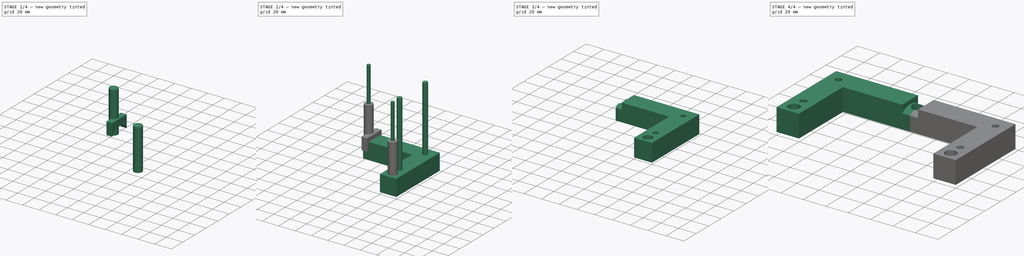
[diagram: build sequence overview — one tinted view per stage of 4, left to right]
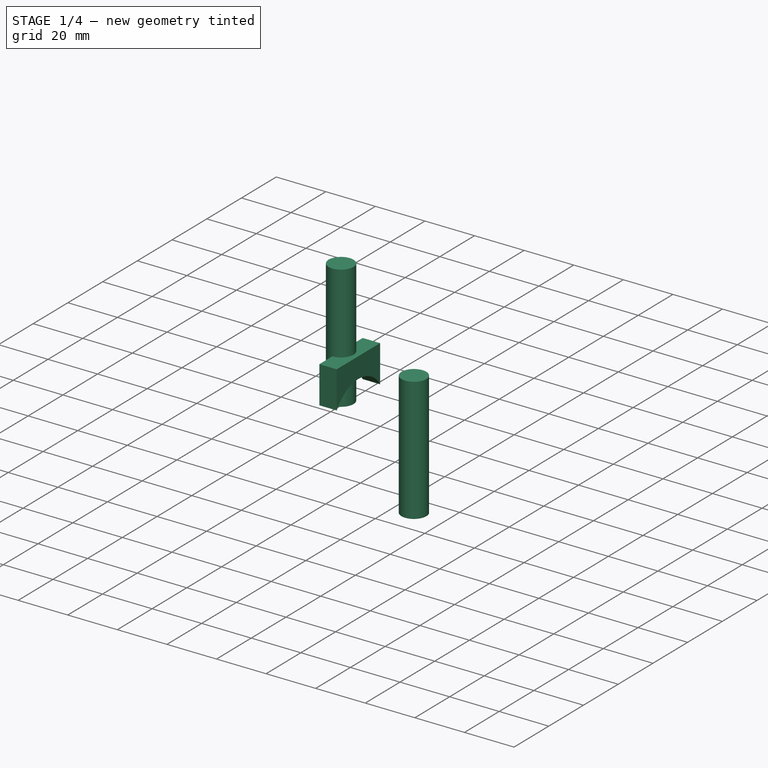
[diagram: stage 1 of 4 — iso view after this stage's code; geometry added in this stage tinted green]
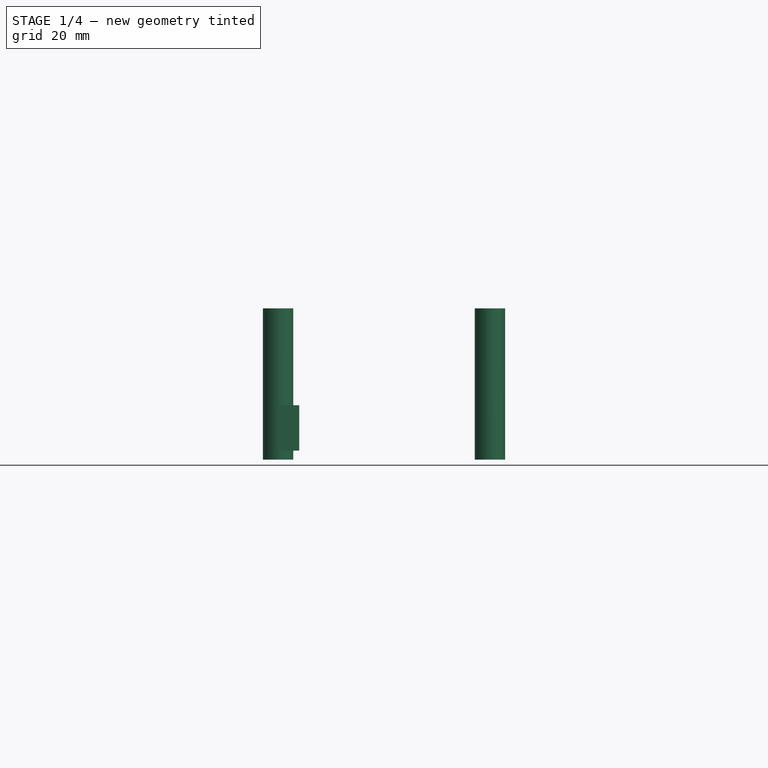
[diagram: stage 1 of 4 — front view after this stage's code; geometry added in this stage tinted green]
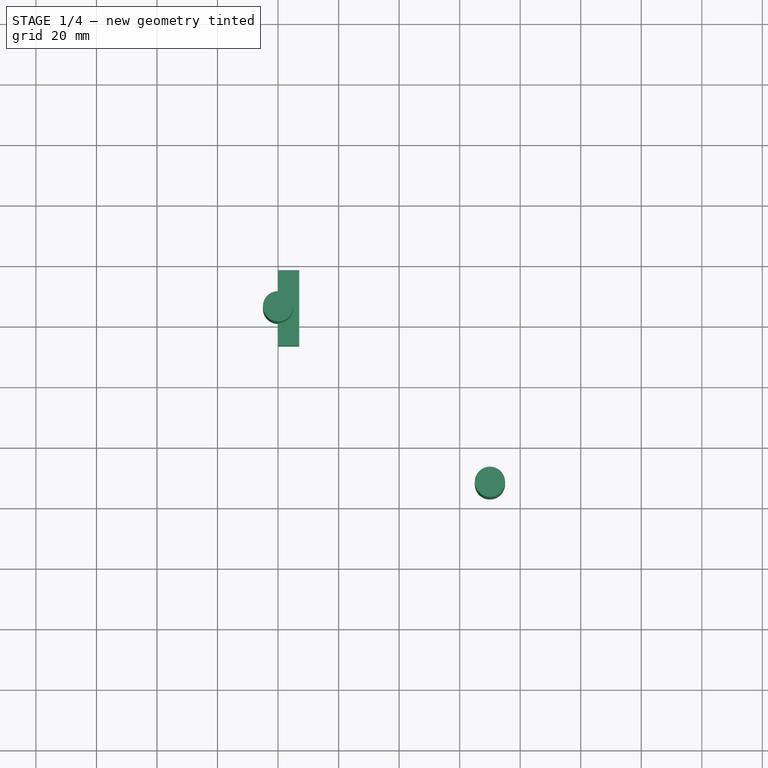
[diagram: stage 1 of 4 — top view after this stage's code; geometry added in this stage tinted green]
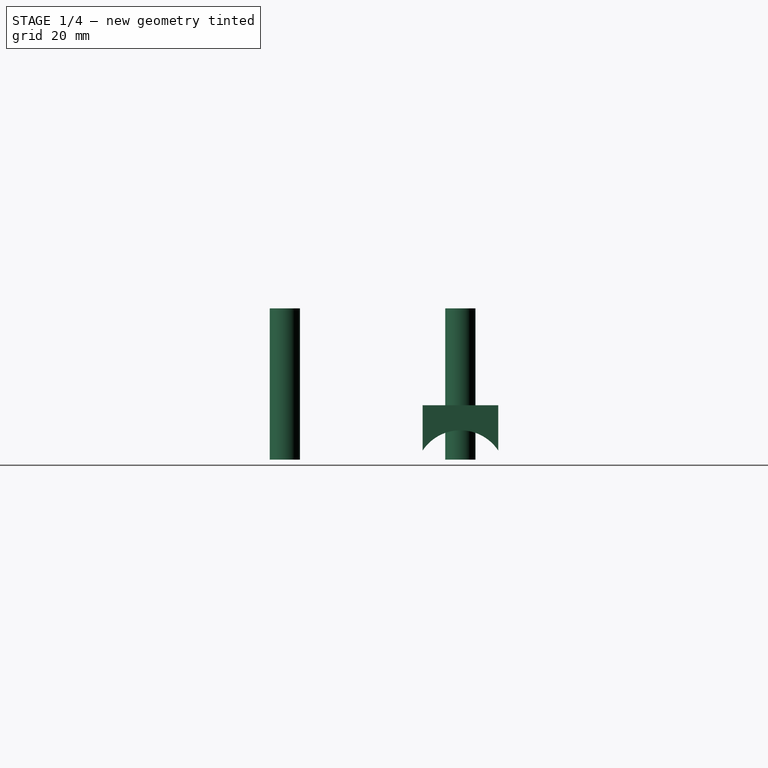
[diagram: stage 1 of 4 — right view after this stage's code; geometry added in this stage tinted green]
FCSTD DOCUMENT  (FreeCAD 0.15R4606 (Git))
Label: computer_mounting_spacer
License: All rights reserved
LicenseURL: http://en.wikipedia.org/wiki/All_rights_reserved
objects: Sketcher::SketchObject×4, PartDesign::Pad×4, Part::Cut×3, Part::Mirroring×1, Part::MultiFuse×1
note: 17 computed .brp shape members not serialized (recipe doc carries the construction recipe); baked Part::Feature solids carry a one-line shape summary decoded from their .brp

FEATURE [Sketcher::SketchObject] Sketch002
  Placement = pos=(0,0,7) rot=(0,0,1;0rad)
  sketch-geometry (2):
    g0: Circle CenterX=0 CenterY=66 CenterZ=0 NormalX=0 NormalY=0 NormalZ=1 Radius=5
    g1: Circle CenterX=70 CenterY=8 CenterZ=0 NormalX=0 NormalY=0 NormalZ=1 Radius=5
  constraints (6):
    c: PointOnObject(g0,g-2)
    c: DistanceY(g-1,g0) = 66
    c: Radius(g0) = 5
    c: Equal(g0,g1)
    c: DistanceY(g-1,g1) = 8
    c: DistanceX(g-1,g1) = 70
FEATURE [PartDesign::Pad] Pad002  label="Screw Recesses"
  Length = 50
  Length2 = 100
  Placement = pos=(0,0,7) rot=(0,0,1;0rad)
  Sketch = -> Sketch002
  Type = 0
FEATURE [Sketcher::SketchObject] Sketch003
  Placement = pos=(0,0,0) rot=(0.57735,0.57735,0.57735;2.0944rad)
  sketch-geometry (4):
    g0: ArcOfCircle CenterX=66 CenterY=1.70844 CenterZ=0 NormalX=0 NormalY=0 NormalZ=1 Radius=15 StartAngle=0.585686 EndAngle=2.55591
    g1: LineSegment StartX=53.5 StartY=10 StartZ=0 EndX=53.5 EndY=25 EndZ=0
    g2: LineSegment StartX=53.5 StartY=25 StartZ=0 EndX=78.5 EndY=25 EndZ=0
    g3: LineSegment StartX=78.5 StartY=25 StartZ=0 EndX=78.5 EndY=10 EndZ=0
  constraints (13):
    c: Vertical(g1)
    c: Coincident(g1,g2)
    c: Coincident(g2,g3)
    c: Coincident(g0,g3)
    c: Coincident(g0,g1)
    c: Horizontal(g2)
    c: Vertical(g3)
    c: Radius(g0) = 15
    c: DistanceY(g-1,g0) = 10
    c: DistanceY(g0,g0) = 0
    c: DistanceX(g-1,g0) = 66
    c: DistanceX(g0,g0) = 25
    c: DistanceY(g1,g0) = -15
FEATURE [PartDesign::Pad] Pad003  label="Clamp Slot"
  Length = 7
  Length2 = 100
  Placement = pos=(0,0,0) rot=(0.57735,0.57735,0.57735;2.0944rad)
  Sketch = -> Sketch003
  Type = 0
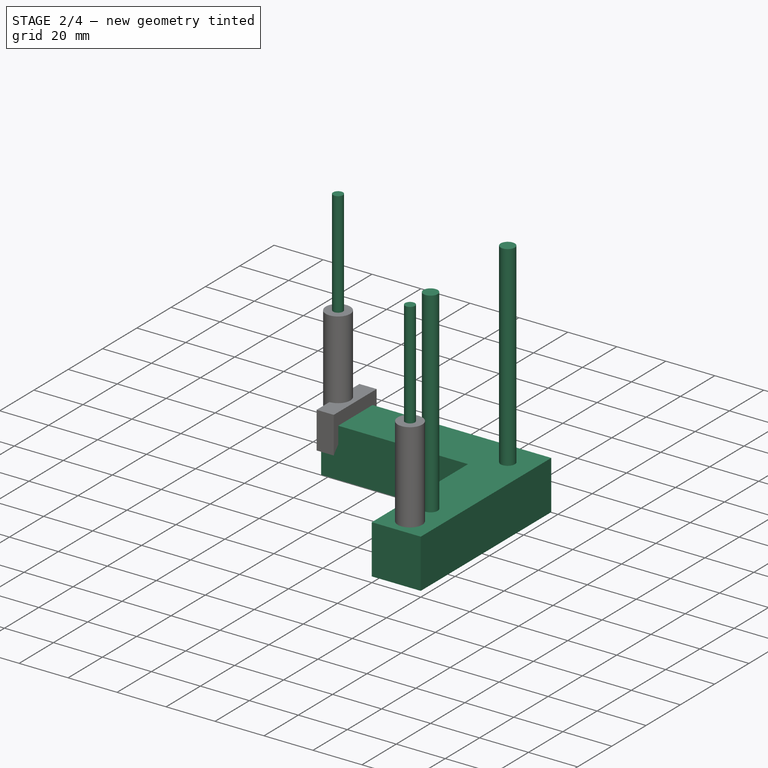
[diagram: stage 2 of 4 — iso view after this stage's code; geometry added in this stage tinted green]
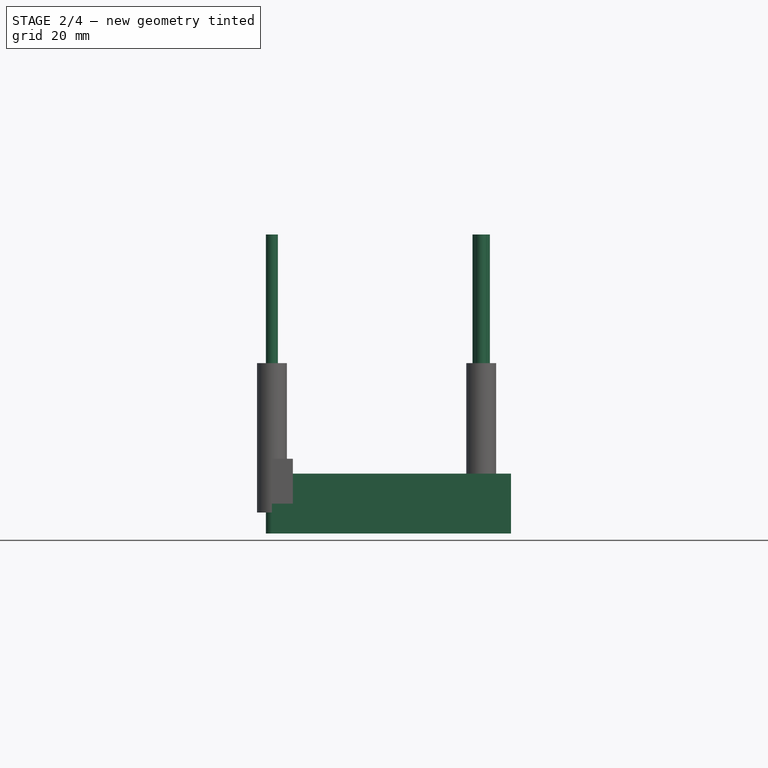
[diagram: stage 2 of 4 — front view after this stage's code; geometry added in this stage tinted green]
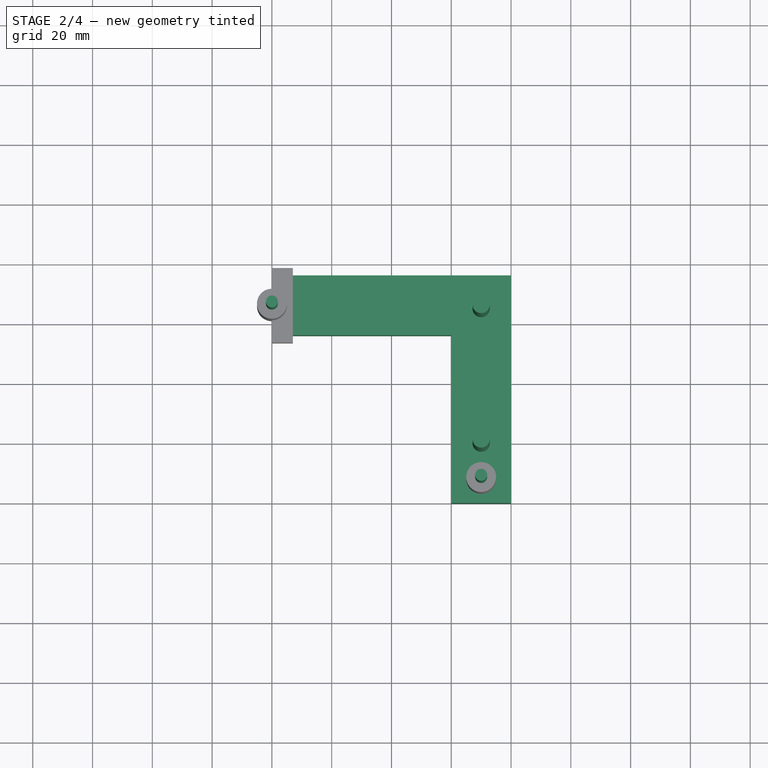
[diagram: stage 2 of 4 — top view after this stage's code; geometry added in this stage tinted green]
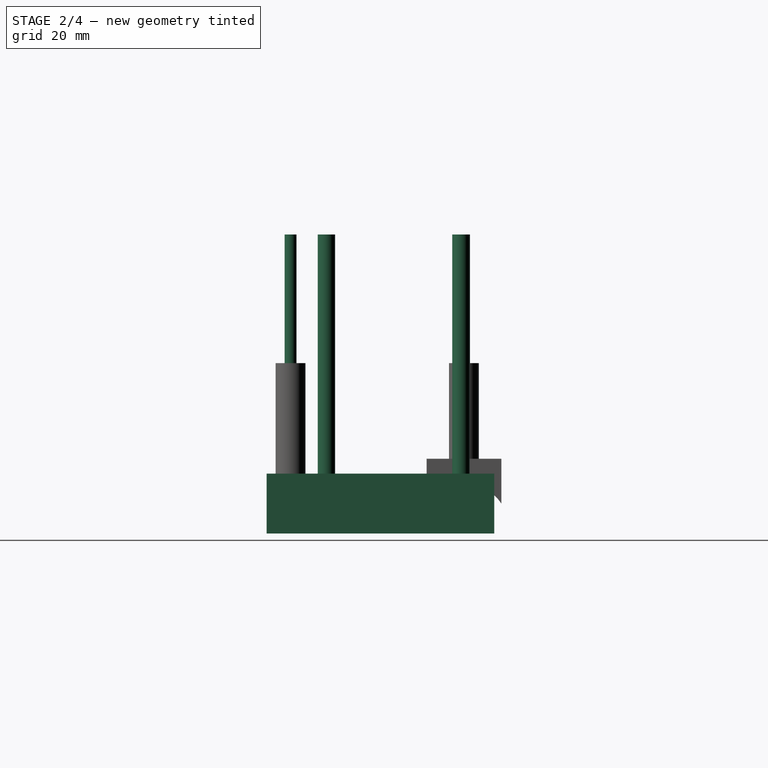
[diagram: stage 2 of 4 — right view after this stage's code; geometry added in this stage tinted green]
FEATURE [Sketcher::SketchObject] Sketch
  sketch-geometry (6):
    g0: LineSegment StartX=0 StartY=76.12 StartZ=0 EndX=80 EndY=76.12 EndZ=0
    g1: LineSegment StartX=80 StartY=76.12 StartZ=0 EndX=80 EndY=0 EndZ=0
    g2: LineSegment StartX=80 StartY=0 StartZ=0 EndX=60 EndY=0 EndZ=0
    g3: LineSegment StartX=60 StartY=0 StartZ=0 EndX=60 EndY=56.12 EndZ=0
    g4: LineSegment StartX=60 StartY=56.12 StartZ=0 EndX=0 EndY=56.12 EndZ=0
    g5: LineSegment StartX=0 StartY=76.12 StartZ=0 EndX=0 EndY=56.12 EndZ=0
  constraints (19):
    c: PointOnObject(g0,g-2)
    c: Horizontal(g0)
    c: Coincident(g0,g1)
    c: Vertical(g1)
    c: Coincident(g1,g2)
    c: Coincident(g2,g3)
    c: Coincident(g3,g4)
    c: PointOnObject(g4,g-2)
    c: Horizontal(g4)
    c: Vertical(g5)
    c: Coincident(g5,g0)
    c: Coincident(g5,g4)
    c: Vertical(g3)
    c: Horizontal(g2)
    c: PointOnObject(g2,g-1)
    c: Distance(g2) = 20
    c: Distance(g0,g4) = 20
    c: DistanceY(g-1,g0) = 76.12
    c: DistanceX(g-1,g1) = 80
FEATURE [Sketcher::SketchObject] Sketch001
  sketch-geometry (4):
    g0: Circle CenterX=70 CenterY=65 CenterZ=0 NormalX=0 NormalY=0 NormalZ=1 Radius=2.9
    g1: Circle CenterX=70 CenterY=20 CenterZ=0 NormalX=0 NormalY=0 NormalZ=1 Radius=2.9
    g2: Circle CenterX=70 CenterY=8 CenterZ=0 NormalX=0 NormalY=0 NormalZ=1 Radius=2
    g3: Circle CenterX=0 CenterY=66 CenterZ=0 NormalX=0 NormalY=0 NormalZ=1 Radius=2
  constraints (11):
    c: Radius(g0) = 2.9
    c: DistanceY(g0,g1) = -45
    c: DistanceX(g2,g1) = 0
    c: DistanceX(g-1,g2) = 70
    c: DistanceY(g-1,g2) = 8
    c: DistanceY(g-1,g1) = 20
    c: PointOnObject(g3,g-2)
    c: Radius(g3) = 2
    c: DistanceY(g-1,g3) = 66
    c: Equal(g2,g3)
    c: Equal(g1,g0)
FEATURE [PartDesign::Pad] Pad  label="Base"
  Length = 20
  Length2 = 100
  Sketch = -> Sketch
  Type = 0
FEATURE [PartDesign::Pad] Pad001  label="Screw Holes"
  Length = 100
  Length2 = 100
  Sketch = -> Sketch001
  Type = 0
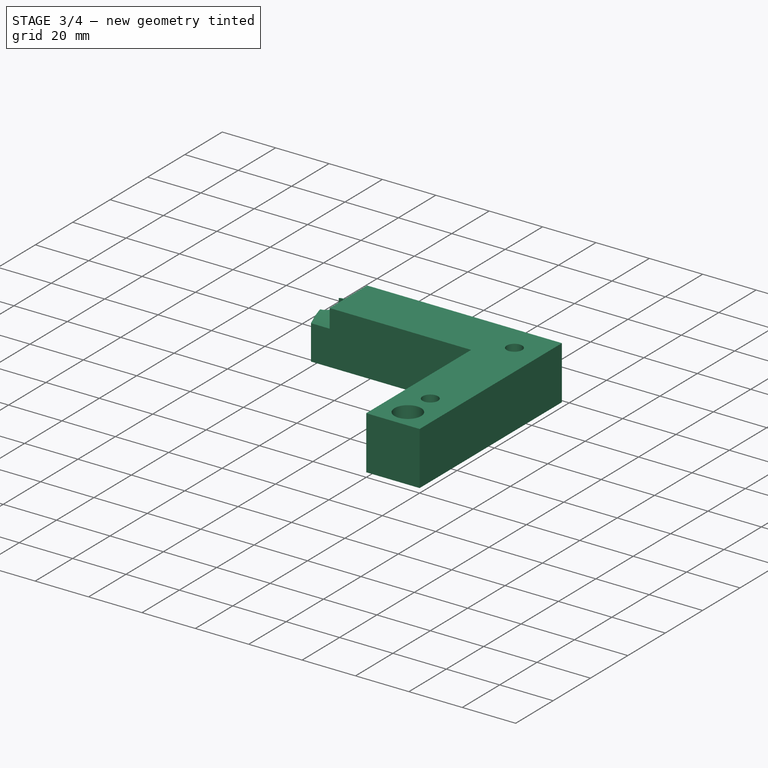
[diagram: stage 3 of 4 — iso view after this stage's code; geometry added in this stage tinted green]
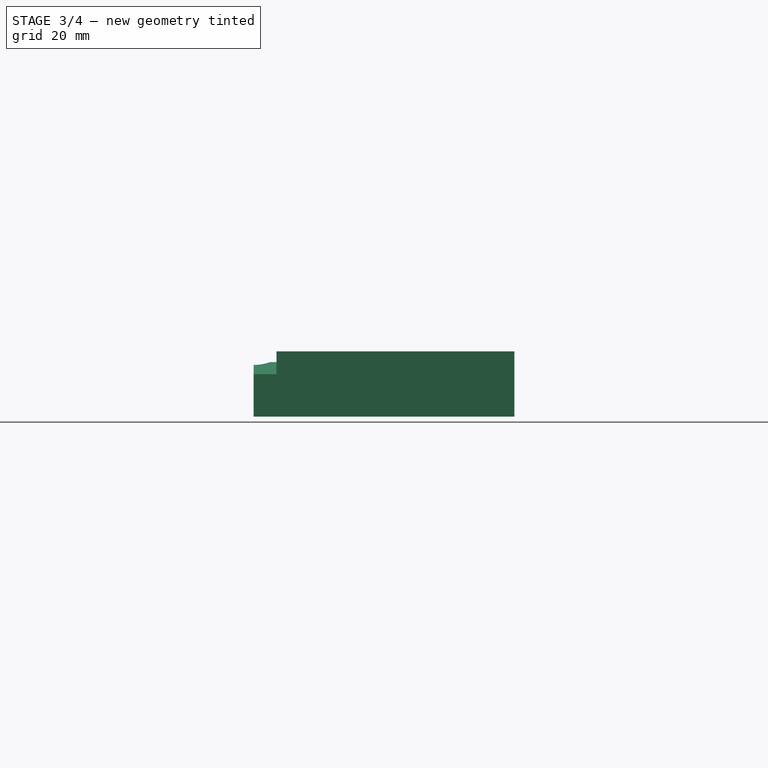
[diagram: stage 3 of 4 — front view after this stage's code; geometry added in this stage tinted green]
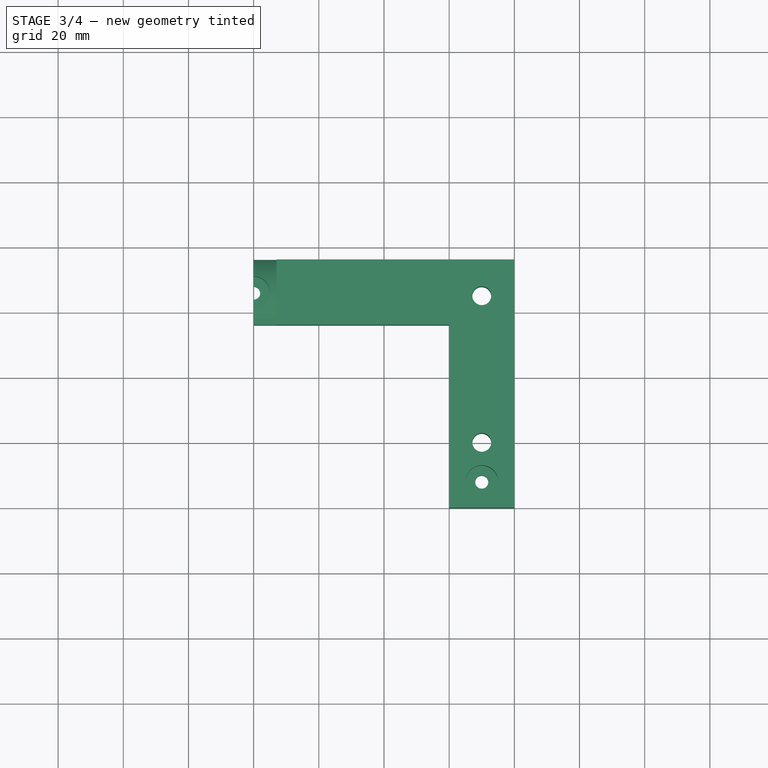
[diagram: stage 3 of 4 — top view after this stage's code; geometry added in this stage tinted green]
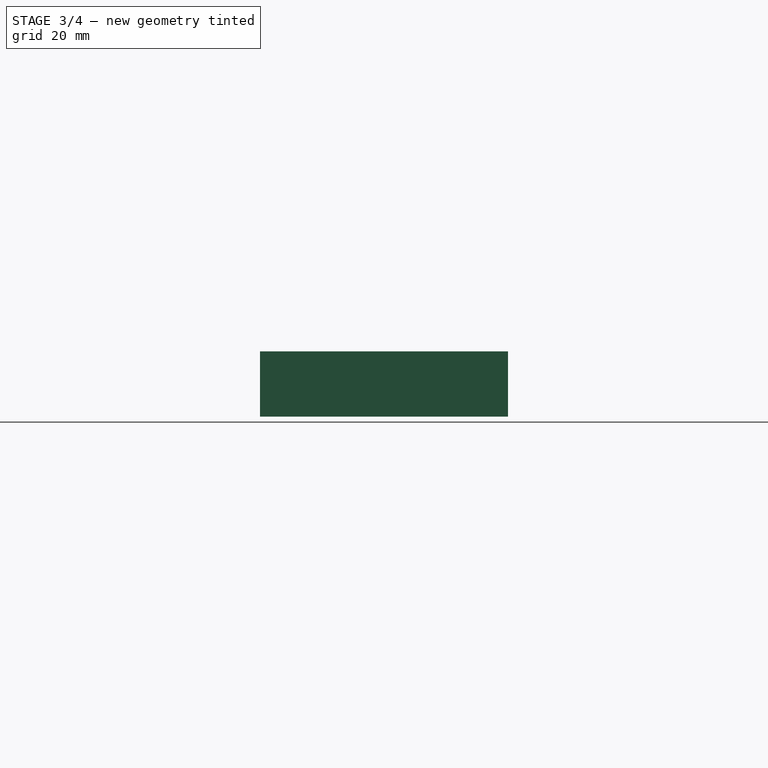
[diagram: stage 3 of 4 — right view after this stage's code; geometry added in this stage tinted green]
FEATURE [Part::Cut] Cut
  Base = -> Pad
  Tool = -> Pad001
FEATURE [Part::Cut] Cut001
  Base = -> Cut
  Tool = -> Pad002
FEATURE [Part::Cut] Cut002
  Base = -> Cut001
  Tool = -> Pad003
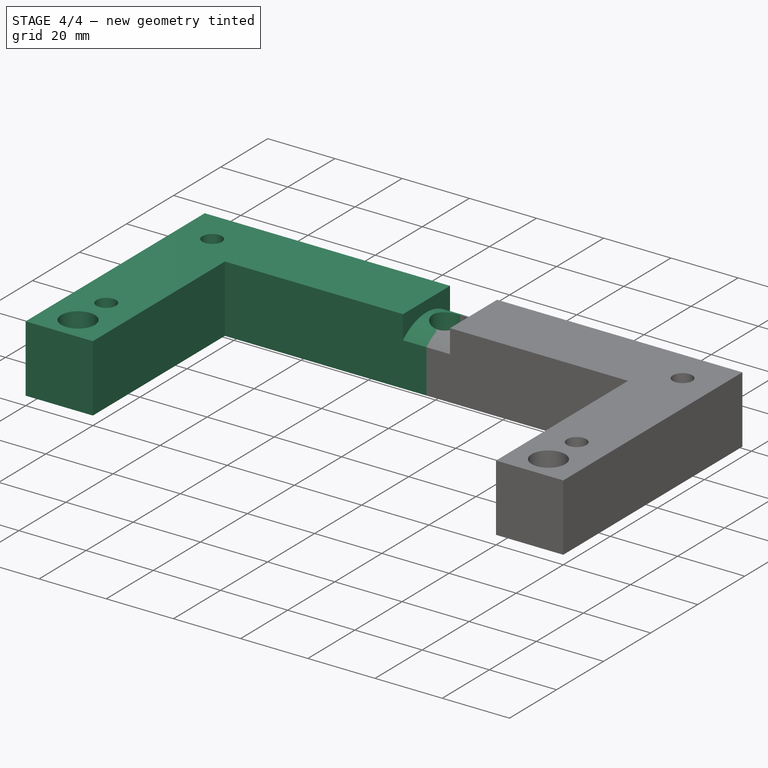
[diagram: stage 4 of 4 — iso view after this stage's code; geometry added in this stage tinted green]
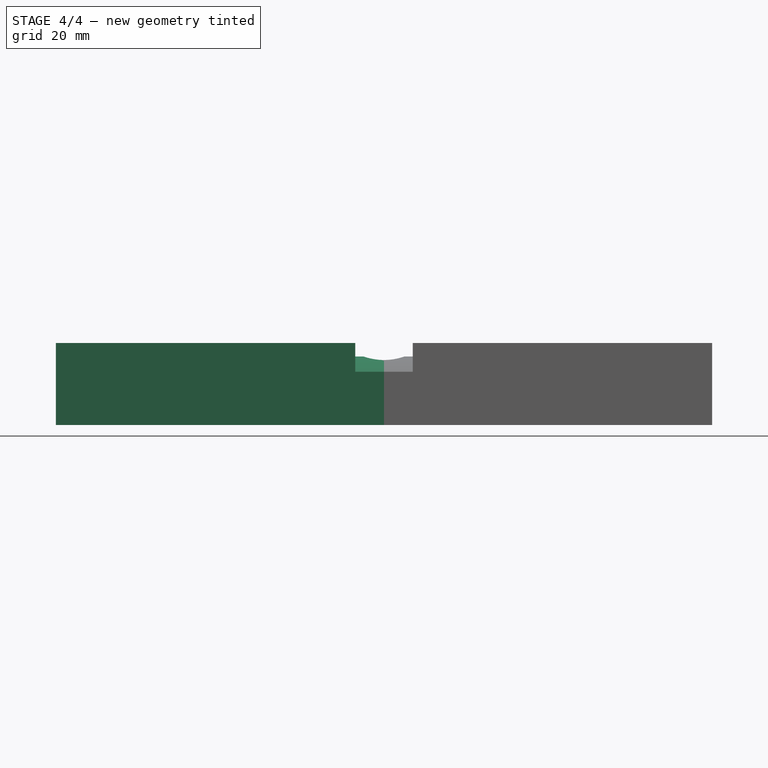
[diagram: stage 4 of 4 — front view after this stage's code; geometry added in this stage tinted green]
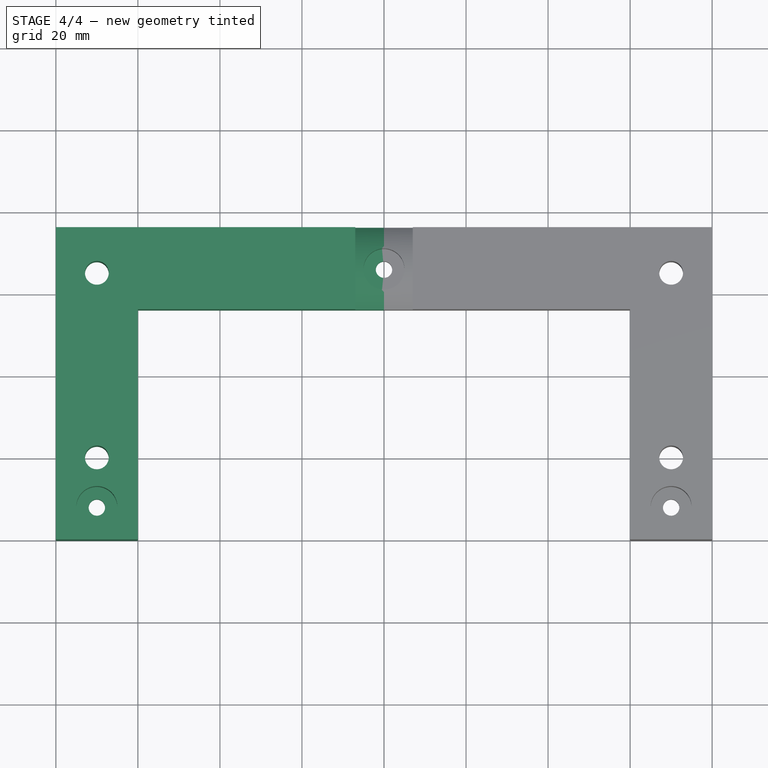
[diagram: stage 4 of 4 — top view after this stage's code; geometry added in this stage tinted green]
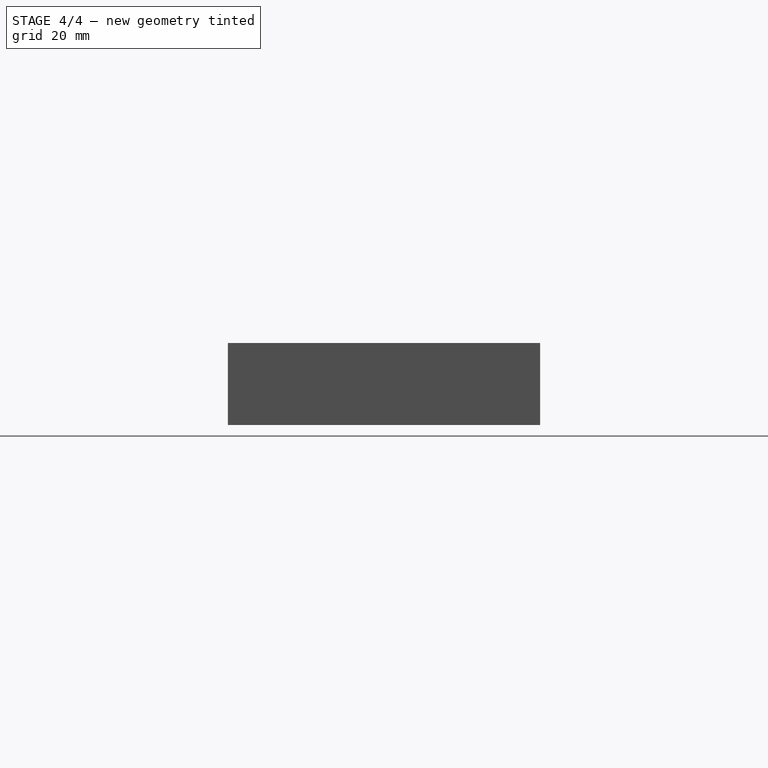
[diagram: stage 4 of 4 — right view after this stage's code; geometry added in this stage tinted green]
FEATURE [Part::Mirroring] Part__Mirroring  label="Cut002 (Mirror #1)"
  Base = (0,0,0)
  Normal = (1,0,0)
  Source = -> Cut002
FEATURE [Part::MultiFuse] Fusion
  Shapes = -> [Part__Mirroring,Cut002]
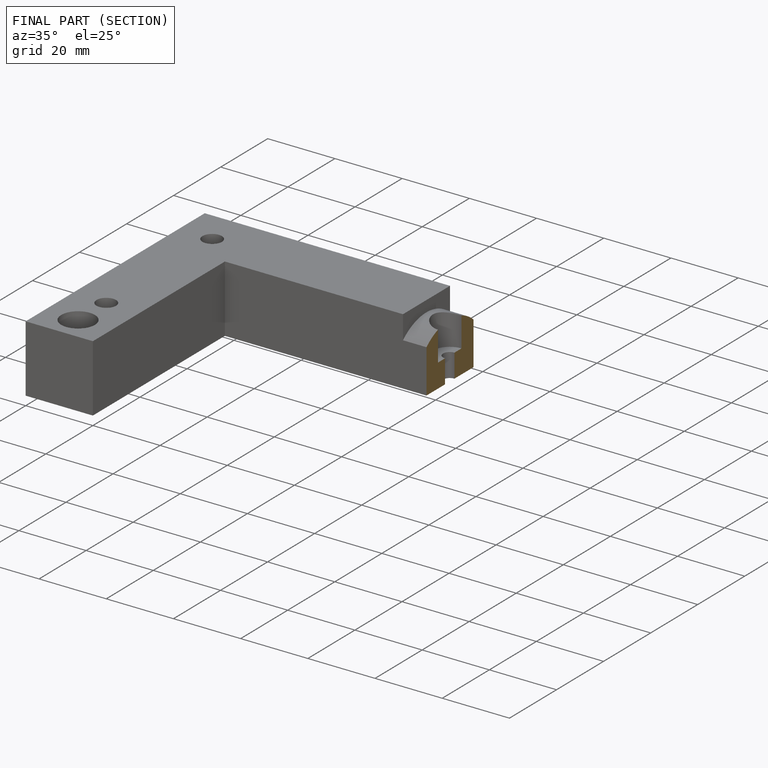
[diagram: finished part — half-section view (interior)]
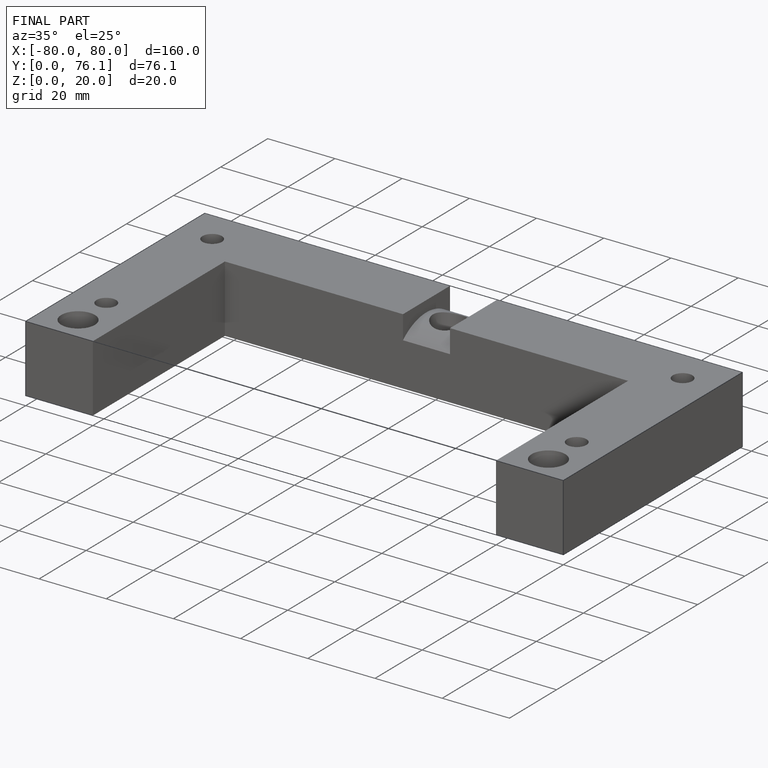
[diagram: finished part — iso view with bounding-box wireframe]
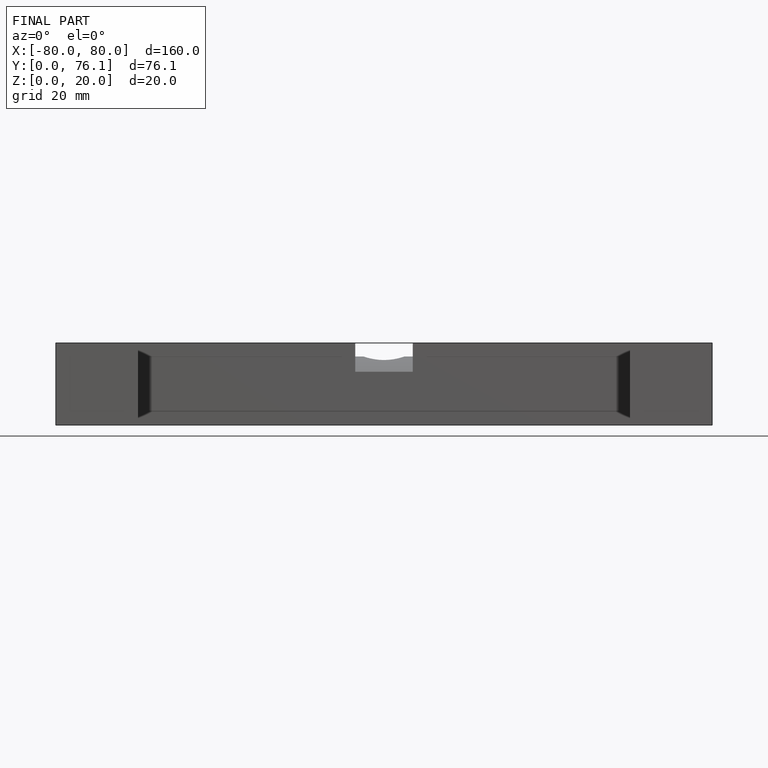
[diagram: finished part — front view with bounding-box wireframe]
